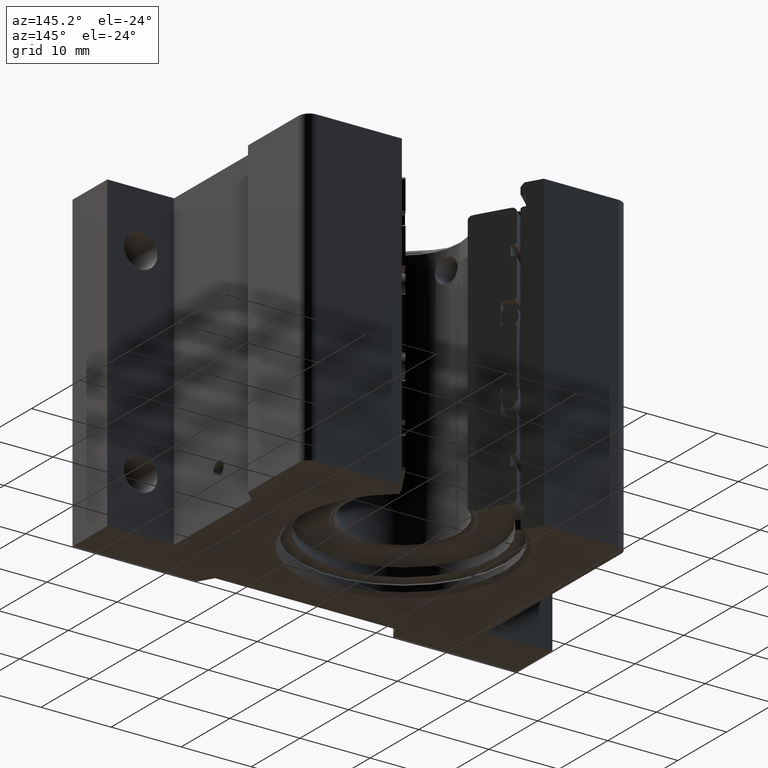
[diagram: clean part render]
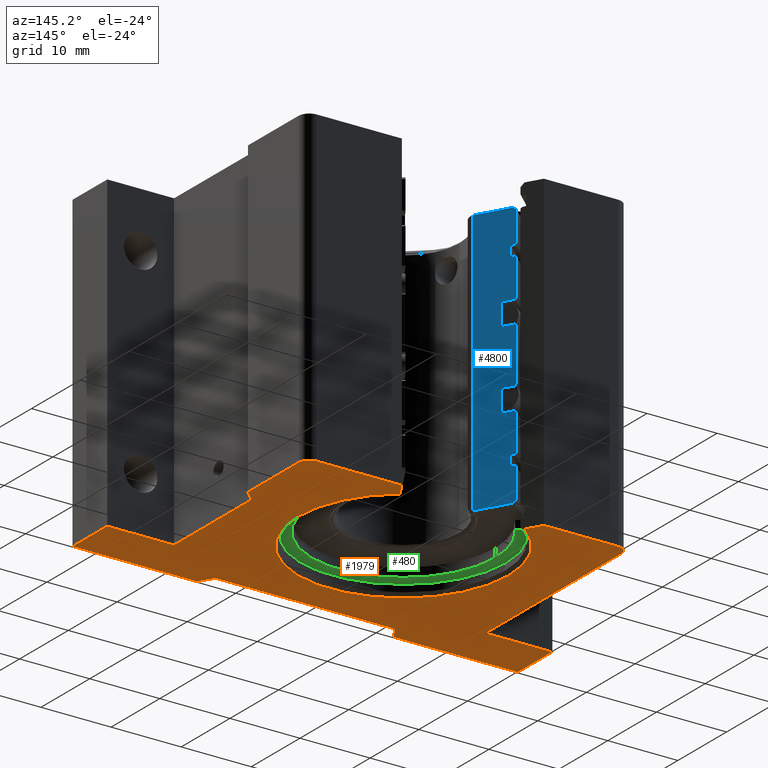
[diagram: same view with three faces highlighted in distinct colors, each labeled with its STEP entity id]
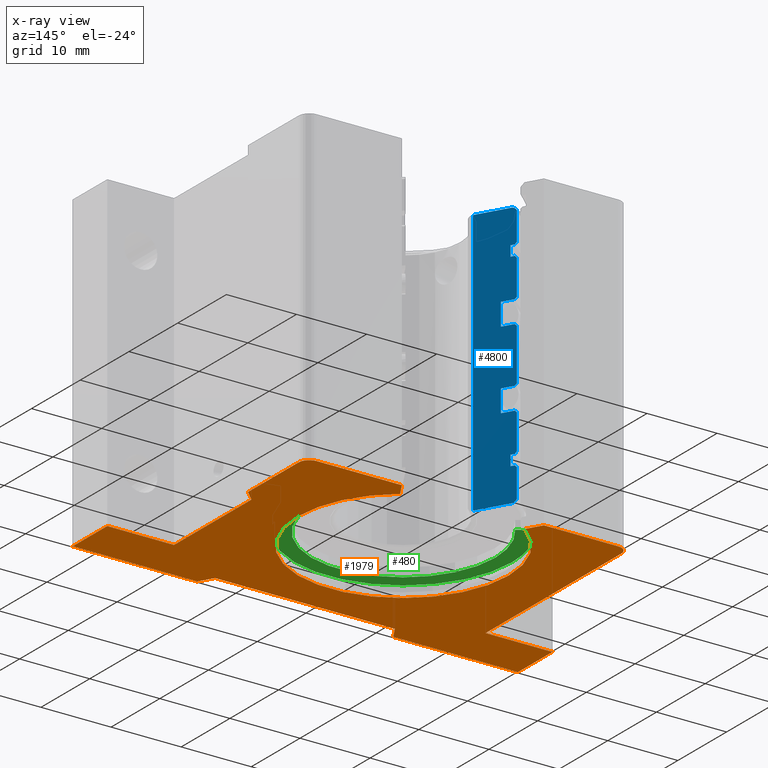
[diagram: x-ray of the same camera — body ghosted, the three highlighted faces saturated]
A machine part, auxiliary view with three faces highlighted in distinct colors.
The next image is the same camera in x-ray (body ghosted, the three faces saturated) — at least one of them is partly hidden behind the body in this view.
Their STEP definitions:

[orange] entity #1979 — the highlighted planar face has unit normal (0, 0, 1).
#162 = ORIENTED_EDGE ( 'NONE', *, *, #2901, .T. ) ;
#272 = DIRECTION ( 'NONE',  ( -0.0000000000000000000, 0.0000000000000000000, 1.000000000000000000 ) ) ;
#324 = DIRECTION ( 'NONE',  ( 1.000000000000000000, 3.642463991552353423E-16, 0.0000000000000000000 ) ) ;
#410 = VECTOR ( 'NONE', #5370, 39.37007874015748143 ) ;
#605 = ORIENTED_EDGE ( 'NONE', *, *, #2780, .T. ) ;
#657 = CIRCLE ( 'NONE', #1450, 0.06000000000000004635 ) ;
#666 = DIRECTION ( 'NONE',  ( 0.4999999999999975575, -0.8660254037844400399, 0.0000000000000000000 ) ) ;
#792 = ORIENTED_EDGE ( 'NONE', *, *, #10227, .T. ) ;
#898 = EDGE_CURVE ( 'NONE', #2655, #9675, #2879, .T. ) ;
#1002 = AXIS2_PLACEMENT_3D ( 'NONE', #9971, #2172, #3860 ) ;
#1027 = CARTESIAN_POINT ( 'NONE',  ( 0.9375000000000000000, 0.5620000000000002771, -0.8749999999999997780 ) ) ;
#1099 = EDGE_CURVE ( 'NONE', #4003, #1108, #5935, .T. ) ;
#1108 = VERTEX_POINT ( 'NONE', #5959 ) ;
#1128 = VECTOR ( 'NONE', #324, 39.37007874015748143 ) ;
#1162 = CARTESIAN_POINT ( 'NONE',  ( 0.3987364078976752269, 0.5620000000000003881, -0.8749999999999997780 ) ) ;
#1197 = LINE ( 'NONE', #5889, #6442 ) ;
#1237 = VECTOR ( 'NONE', #11203, 39.37007874015748143 ) ;
#1315 = ORIENTED_EDGE ( 'NONE', *, *, #9383, .T. ) ;
#1362 = LINE ( 'NONE', #4530, #1885 ) ;
#1399 = EDGE_CURVE ( 'NONE', #2231, #7678, #5780, .T. ) ;
#1403 = ORIENTED_EDGE ( 'NONE', *, *, #6798, .T. ) ;
#1450 = AXIS2_PLACEMENT_3D ( 'NONE', #2883, #2916, #4668 ) ;
#1483 = EDGE_CURVE ( 'NONE', #10449, #2231, #5223, .T. ) ;
#1647 = LINE ( 'NONE', #5455, #1128 ) ;
#1885 = VECTOR ( 'NONE', #2187, 39.37007874015748143 ) ;
#1935 = CARTESIAN_POINT ( 'NONE',  ( -0.8750000000000000000, -0.5939999999999999725, -0.8749999999999997780 ) ) ;
#1946 = ORIENTED_EDGE ( 'NONE', *, *, #3545, .T. ) ;
#1979 = ADVANCED_FACE ( 'NONE', ( #10864 ), #4534, .F. ) ;
#2036 = LINE ( 'NONE', #7472, #3124 ) ;
#2075 = CARTESIAN_POINT ( 'NONE',  ( -0.8149999999999999467, 0.5020000000000004459, -0.8749999999999997780 ) ) ;
#2096 = VERTEX_POINT ( 'NONE', #5395 ) ;
#2113 = CARTESIAN_POINT ( 'NONE',  ( 1.081811805491048871E-16, -0.5939999999999999725, -0.8749999999999997780 ) ) ;
#2172 = DIRECTION ( 'NONE',  ( -0.0000000000000000000, 0.0000000000000000000, 1.000000000000000000 ) ) ;
#2187 = DIRECTION ( 'NONE',  ( 0.0000000000000000000, -1.000000000000000000, 0.0000000000000000000 ) ) ;
#2231 = VERTEX_POINT ( 'NONE', #7383 ) ;
#2244 = VERTEX_POINT ( 'NONE', #7058 ) ;
#2311 = EDGE_CURVE ( 'NONE', #5489, #5881, #5807, .T. ) ;
#2388 = ORIENTED_EDGE ( 'NONE', *, *, #5465, .T. ) ;
#2457 = VERTEX_POINT ( 'NONE', #4590 ) ;
#2617 = CARTESIAN_POINT ( 'NONE',  ( -0.5047649730810367386, -0.7950000000000001510, -0.8749999999999997780 ) ) ;
#2655 = VERTEX_POINT ( 'NONE', #2617 ) ;
#2671 = CARTESIAN_POINT ( 'NONE',  ( 0.9375000000000000000, 0.5020000000000003348, -0.8749999999999997780 ) ) ;
#2751 = CARTESIAN_POINT ( 'NONE',  ( 0.05569916745983082007, -0.03215792932657114689, -0.8749999999999997780 ) ) ;
#2780 = EDGE_CURVE ( 'NONE', #6974, #5754, #5933, .T. ) ;
#2851 = AXIS2_PLACEMENT_3D ( 'NONE', #10887, #10089, #5709 ) ;
#2873 = DIRECTION ( 'NONE',  ( -0.5000000000000055511, -0.8660254037844353769, 0.0000000000000000000 ) ) ;
#2879 = LINE ( 'NONE', #8051, #6367 ) ;
#2883 = CARTESIAN_POINT ( 'NONE',  ( 0.8774999999999999467, 0.5020000000000003348, -0.8749999999999997780 ) ) ;
#2901 = EDGE_CURVE ( 'NONE', #1108, #6974, #10023, .T. ) ;
#2916 = DIRECTION ( 'NONE',  ( 0.0000000000000000000, -0.0000000000000000000, -1.000000000000000000 ) ) ;
#3034 = LINE ( 'NONE', #4678, #10046 ) ;
#3067 = CARTESIAN_POINT ( 'NONE',  ( -0.5509529946162073921, -0.8750000000000000000, -0.8749999999999997780 ) ) ;
#3116 = CARTESIAN_POINT ( 'NONE',  ( 0.3491928415662754470, 0.4761881868495112524, -0.8750004910210985587 ) ) ;
#3124 = VECTOR ( 'NONE', #9093, 39.37007874015748143 ) ;
#3145 = LINE ( 'NONE', #11191, #4741 ) ;
#3323 = ORIENTED_EDGE ( 'NONE', *, *, #2311, .T. ) ;
#3345 = VERTEX_POINT ( 'NONE', #1162 ) ;
#3446 = VERTEX_POINT ( 'NONE', #6437 ) ;
#3457 = ORIENTED_EDGE ( 'NONE', *, *, #6394, .T. ) ;
#3481 = EDGE_CURVE ( 'NONE', #2457, #8111, #4726, .T. ) ;
#3545 = EDGE_CURVE ( 'NONE', #5650, #2655, #2036, .T. ) ;
#3712 = CARTESIAN_POINT ( 'NONE',  ( 0.5904999999999986926, 7.231539348965104059E-17, -0.8749999999999997780 ) ) ;
#3758 = DIRECTION ( 'NONE',  ( 1.000000000000000000, 0.0000000000000000000, 0.0000000000000000000 ) ) ;
#3775 = VECTOR ( 'NONE', #8786, 39.37007874015748143 ) ;
#3780 = VECTOR ( 'NONE', #10895, 39.37007874015748143 ) ;
#3860 = DIRECTION ( 'NONE',  ( 1.000000000000000000, 0.0000000000000000000, 0.0000000000000000000 ) ) ;
#3885 = CIRCLE ( 'NONE', #2851, 0.5904999999999986926 ) ;
#3985 = ORIENTED_EDGE ( 'NONE', *, *, #1483, .T. ) ;
#4003 = VERTEX_POINT ( 'NONE', #1935 ) ;
#4015 = DIRECTION ( 'NONE',  ( 1.000000000000000000, 0.0000000000000000000, 0.0000000000000000000 ) ) ;
#4225 = ORIENTED_EDGE ( 'NONE', *, *, #3481, .T. ) ;
#4230 = VERTEX_POINT ( 'NONE', #3116 ) ;
#4371 = EDGE_CURVE ( 'NONE', #4230, #3345, #5271, .T. ) ;
#4401 = CARTESIAN_POINT ( 'NONE',  ( -2.028911374921485628E-16, 0.5620000000000006102, -0.8749999999999997780 ) ) ;
#4427 = CARTESIAN_POINT ( 'NONE',  ( 0.8750000000000002220, -0.5939999999999997504, -0.8749999999999997780 ) ) ;
#4530 = CARTESIAN_POINT ( 'NONE',  ( 1.250000000000000000, 0.0000000000000000000, -0.8749999999999997780 ) ) ;
#4534 = PLANE ( 'NONE',  #9843 ) ;
#4555 = DIRECTION ( 'NONE',  ( -0.7071067811865432429, -0.7071067811865516806, 0.0000000000000000000 ) ) ;
#4590 = CARTESIAN_POINT ( 'NONE',  ( -0.5904999999999986926, 0.0000000000000000000, -0.8749999999999997780 ) ) ;
#4614 = ORIENTED_EDGE ( 'NONE', *, *, #9039, .T. ) ;
#4668 = DIRECTION ( 'NONE',  ( 1.000000000000000000, 0.0000000000000000000, 0.0000000000000000000 ) ) ;
#4678 = CARTESIAN_POINT ( 'NONE',  ( 0.03432863180645934209, 0.01981964481437106795, -0.8749999999999997780 ) ) ;
#4726 = CIRCLE ( 'NONE', #6715, 0.5904999999999986926 ) ;
#4736 = DIRECTION ( 'NONE',  ( -0.0000000000000000000, 0.0000000000000000000, 1.000000000000000000 ) ) ;
#4741 = VECTOR ( 'NONE', #6020, 39.37007874015748143 ) ;
#4825 = EDGE_CURVE ( 'NONE', #7397, #4003, #1647, .T. ) ;
#4895 = CARTESIAN_POINT ( 'NONE',  ( 0.0000000000000000000, -0.8750000000000000000, -0.8749999999999997780 ) ) ;
#5006 = VECTOR ( 'NONE', #6220, 39.37007874015748854 ) ;
#5122 = CARTESIAN_POINT ( 'NONE',  ( -1.249999999999999778, 0.0000000000000000000, -0.8749999999999997780 ) ) ;
#5162 = DIRECTION ( 'NONE',  ( 0.0000000000000000000, 1.000000000000000000, 0.0000000000000000000 ) ) ;
#5209 = ORIENTED_EDGE ( 'NONE', *, *, #10333, .T. ) ;
#5223 = LINE ( 'NONE', #1027, #410 ) ;
#5271 = LINE ( 'NONE', #2751, #5006 ) ;
#5370 = DIRECTION ( 'NONE',  ( 0.0000000000000000000, -1.000000000000000000, 0.0000000000000000000 ) ) ;
#5395 = CARTESIAN_POINT ( 'NONE',  ( 0.8774999999999999467, 0.5620000000000002771, -0.8749999999999997780 ) ) ;
#5402 = CARTESIAN_POINT ( 'NONE',  ( 0.0000000000000000000, 0.0000000000000000000, -0.8749999999999997780 ) ) ;
#5455 = CARTESIAN_POINT ( 'NONE',  ( 2.163623610982096508E-16, -0.5939999999999996394, -0.8749999999999997780 ) ) ;
#5465 = EDGE_CURVE ( 'NONE', #2244, #5489, #1362, .T. ) ;
#5489 = VERTEX_POINT ( 'NONE', #11107 ) ;
#5490 = CARTESIAN_POINT ( 'NONE',  ( -1.249999999999999778, -0.5940000000000000835, -0.8749999999999997780 ) ) ;
#5501 = ORIENTED_EDGE ( 'NONE', *, *, #4825, .T. ) ;
#5530 = VERTEX_POINT ( 'NONE', #6669 ) ;
#5534 = VECTOR ( 'NONE', #10594, 39.37007874015748143 ) ;
#5622 = EDGE_CURVE ( 'NONE', #5530, #7397, #9045, .T. ) ;
#5650 = VERTEX_POINT ( 'NONE', #6039 ) ;
#5709 = DIRECTION ( 'NONE',  ( 1.000000000000000000, 0.0000000000000000000, 0.0000000000000000000 ) ) ;
#5754 = VERTEX_POINT ( 'NONE', #6866 ) ;
#5780 = LINE ( 'NONE', #10650, #8119 ) ;
#5807 = LINE ( 'NONE', #6209, #5534 ) ;
#5881 = VERTEX_POINT ( 'NONE', #7067 ) ;
#5889 = CARTESIAN_POINT ( 'NONE',  ( -0.05569916745983072986, -0.03215792932657110526, -0.8749999999999997780 ) ) ;
#5933 = LINE ( 'NONE', #4401, #3775 ) ;
#5935 = LINE ( 'NONE', #9470, #1237 ) ;
#5959 = CARTESIAN_POINT ( 'NONE',  ( -0.8750000000000000000, 0.5020000000000004459, -0.8749999999999997780 ) ) ;
#6020 = DIRECTION ( 'NONE',  ( 0.0000000000000000000, -1.000000000000000000, 0.0000000000000000000 ) ) ;
#6039 = CARTESIAN_POINT ( 'NONE',  ( 0.5047649730810368496, -0.7950000000000000400, -0.8749999999999997780 ) ) ;
#6144 = ORIENTED_EDGE ( 'NONE', *, *, #1399, .T. ) ;
#6209 = CARTESIAN_POINT ( 'NONE',  ( 0.0000000000000000000, -0.8750000000000000000, -0.8749999999999997780 ) ) ;
#6220 = DIRECTION ( 'NONE',  ( 0.4999999999999973910, 0.8660254037844400399, 0.0000000000000000000 ) ) ;
#6271 = EDGE_CURVE ( 'NONE', #8599, #2244, #10300, .T. ) ;
#6362 = DIRECTION ( 'NONE',  ( 0.0000000000000000000, -0.0000000000000000000, -1.000000000000000000 ) ) ;
#6367 = VECTOR ( 'NONE', #2873, 39.37007874015748854 ) ;
#6394 = EDGE_CURVE ( 'NONE', #9675, #5530, #9607, .T. ) ;
#6437 = CARTESIAN_POINT ( 'NONE',  ( -0.3491928415662753915, 0.4761881868495112524, -0.8750004910210985587 ) ) ;
#6442 = VECTOR ( 'NONE', #666, 39.37007874015748854 ) ;
#6447 = ORIENTED_EDGE ( 'NONE', *, *, #1099, .T. ) ;
#6669 = CARTESIAN_POINT ( 'NONE',  ( -1.249999999999999778, -0.8750000000000000000, -0.8749999999999997780 ) ) ;
#6715 = AXIS2_PLACEMENT_3D ( 'NONE', #7357, #4736, #4015 ) ;
#6798 = EDGE_CURVE ( 'NONE', #3446, #2457, #10947, .T. ) ;
#6866 = CARTESIAN_POINT ( 'NONE',  ( -0.3987364078976752269, 0.5620000000000002771, -0.8749999999999997780 ) ) ;
#6974 = VERTEX_POINT ( 'NONE', #7671 ) ;
#7058 = CARTESIAN_POINT ( 'NONE',  ( 1.250000000000000000, -0.5939999999999997504, -0.8749999999999997780 ) ) ;
#7067 = CARTESIAN_POINT ( 'NONE',  ( 0.5509529946162073921, -0.8750000000000000000, -0.8749999999999997780 ) ) ;
#7298 = VECTOR ( 'NONE', #5162, 39.37007874015748143 ) ;
#7328 = ORIENTED_EDGE ( 'NONE', *, *, #6271, .T. ) ;
#7357 = CARTESIAN_POINT ( 'NONE',  ( 0.0000000000000000000, 0.0000000000000000000, -0.8749999999999997780 ) ) ;
#7383 = CARTESIAN_POINT ( 'NONE',  ( 0.9375000000000000000, 0.09299999999999992994, -0.8749999999999997780 ) ) ;
#7397 = VERTEX_POINT ( 'NONE', #5490 ) ;
#7409 = EDGE_CURVE ( 'NONE', #2096, #10449, #657, .T. ) ;
#7472 = CARTESIAN_POINT ( 'NONE',  ( 1.075658608850429279E-16, -0.7950000000000000400, -0.8749999999999997780 ) ) ;
#7671 = CARTESIAN_POINT ( 'NONE',  ( -0.8149999999999999467, 0.5620000000000003881, -0.8749999999999997780 ) ) ;
#7678 = VERTEX_POINT ( 'NONE', #10207 ) ;
#7694 = ORIENTED_EDGE ( 'NONE', *, *, #5622, .T. ) ;
#7803 = ORIENTED_EDGE ( 'NONE', *, *, #9730, .T. ) ;
#7990 = VECTOR ( 'NONE', #8177, 39.37007874015748143 ) ;
#8051 = CARTESIAN_POINT ( 'NONE',  ( -0.03432863180645777390, 0.01981964481437023876, -0.8749999999999997780 ) ) ;
#8111 = VERTEX_POINT ( 'NONE', #3712 ) ;
#8119 = VECTOR ( 'NONE', #4555, 39.37007874015748854 ) ;
#8177 = DIRECTION ( 'NONE',  ( 1.000000000000000000, 1.821231995776176712E-16, 0.0000000000000000000 ) ) ;
#8199 = AXIS2_PLACEMENT_3D ( 'NONE', #2075, #6362, #3758 ) ;
#8263 = ORIENTED_EDGE ( 'NONE', *, *, #7409, .T. ) ;
#8464 = DIRECTION ( 'NONE',  ( -1.000000000000000000, 0.0000000000000000000, -0.0000000000000000000 ) ) ;
#8493 = EDGE_LOOP ( 'NONE', ( #11169, #7803, #8263, #3985, #6144, #1315, #7328, #2388, #3323, #4614, #1946, #8794, #3457, #7694, #5501, #6447, #162, #605, #5209, #1403, #4225, #792 ) ) ;
#8599 = VERTEX_POINT ( 'NONE', #4427 ) ;
#8786 = DIRECTION ( 'NONE',  ( 1.000000000000000000, 3.610162588828262597E-16, 0.0000000000000000000 ) ) ;
#8794 = ORIENTED_EDGE ( 'NONE', *, *, #898, .T. ) ;
#8836 = DIRECTION ( 'NONE',  ( 1.000000000000000000, 0.0000000000000000000, 0.0000000000000000000 ) ) ;
#9039 = EDGE_CURVE ( 'NONE', #5881, #5650, #3034, .T. ) ;
#9045 = LINE ( 'NONE', #5122, #7298 ) ;
#9093 = DIRECTION ( 'NONE',  ( -1.000000000000000000, -1.353029696667206715E-16, 0.0000000000000000000 ) ) ;
#9198 = VECTOR ( 'NONE', #8464, 39.37007874015748143 ) ;
#9383 = EDGE_CURVE ( 'NONE', #7678, #8599, #3145, .T. ) ;
#9470 = CARTESIAN_POINT ( 'NONE',  ( -0.8750000000000000000, 0.0000000000000000000, -0.8749999999999997780 ) ) ;
#9605 = LINE ( 'NONE', #11009, #3780 ) ;
#9607 = LINE ( 'NONE', #4895, #9198 ) ;
#9675 = VERTEX_POINT ( 'NONE', #3067 ) ;
#9730 = EDGE_CURVE ( 'NONE', #3345, #2096, #9605, .T. ) ;
#9843 = AXIS2_PLACEMENT_3D ( 'NONE', #5402, #272, #8836 ) ;
#9971 = CARTESIAN_POINT ( 'NONE',  ( 0.0000000000000000000, 0.0000000000000000000, -0.8749999999999997780 ) ) ;
#10023 = CIRCLE ( 'NONE', #8199, 0.06000000000000004635 ) ;
#10046 = VECTOR ( 'NONE', #10765, 39.37007874015748143 ) ;
#10089 = DIRECTION ( 'NONE',  ( -0.0000000000000000000, 0.0000000000000000000, 1.000000000000000000 ) ) ;
#10207 = CARTESIAN_POINT ( 'NONE',  ( 0.8750000000000003331, 0.03049999999999934708, -0.8749999999999997780 ) ) ;
#10227 = EDGE_CURVE ( 'NONE', #8111, #4230, #3885, .T. ) ;
#10300 = LINE ( 'NONE', #2113, #7990 ) ;
#10333 = EDGE_CURVE ( 'NONE', #5754, #3446, #1197, .T. ) ;
#10449 = VERTEX_POINT ( 'NONE', #2671 ) ;
#10594 = DIRECTION ( 'NONE',  ( -1.000000000000000000, 0.0000000000000000000, -0.0000000000000000000 ) ) ;
#10650 = CARTESIAN_POINT ( 'NONE',  ( 0.9375000000000000000, 0.09299999999999992994, -0.8749999999999997780 ) ) ;
#10765 = DIRECTION ( 'NONE',  ( -0.5000000000000041078, 0.8660254037844362651, -0.0000000000000000000 ) ) ;
#10864 = FACE_OUTER_BOUND ( 'NONE', #8493, .T. ) ;
#10887 = CARTESIAN_POINT ( 'NONE',  ( 0.0000000000000000000, 0.0000000000000000000, -0.8749999999999997780 ) ) ;
#10895 = DIRECTION ( 'NONE',  ( 1.000000000000000000, -3.610162588828260132E-16, 0.0000000000000000000 ) ) ;
#10947 = CIRCLE ( 'NONE', #1002, 0.5904999999999986926 ) ;
#11009 = CARTESIAN_POINT ( 'NONE',  ( 2.028911374921484148E-16, 0.5620000000000006102, -0.8749999999999997780 ) ) ;
#11107 = CARTESIAN_POINT ( 'NONE',  ( 1.250000000000000000, -0.8750000000000000000, -0.8749999999999997780 ) ) ;
#11169 = ORIENTED_EDGE ( 'NONE', *, *, #4371, .T. ) ;
#11191 = CARTESIAN_POINT ( 'NONE',  ( 0.8750000000000002220, 0.0000000000000000000, -0.8749999999999997780 ) ) ;
#11203 = DIRECTION ( 'NONE',  ( 0.0000000000000000000, 1.000000000000000000, -0.0000000000000000000 ) ) ;

[blue] entity #4800 — the highlighted planar face has unit normal (-0.866, -0.5, 0).
#2 = CARTESIAN_POINT ( 'NONE',  ( -0.3125650805395794318, 0.4672125705204068780, 0.7462499999999998579 ) ) ;
#24 = B_SPLINE_CURVE_WITH_KNOTS ( 'NONE', 3,
 ( #8502, #4202, #9449, #10249 ),
 .UNSPECIFIED., .F., .F.,
 ( 4, 4 ),
 ( 2.831635418398360090E-07, 0.0003778737183458005734 ),
 .UNSPECIFIED. ) ;
#36 = CARTESIAN_POINT ( 'NONE',  ( -0.3073034003428582461, 0.4580990730865067695, 0.1559999999999999443 ) ) ;
#116 = VERTEX_POINT ( 'NONE', #6252 ) ;
#196 = VECTOR ( 'NONE', #963, 39.37007874015748143 ) ;
#206 = EDGE_CURVE ( 'NONE', #6145, #7871, #392, .T. ) ;
#235 = ORIENTED_EDGE ( 'NONE', *, *, #7972, .F. ) ;
#245 = CARTESIAN_POINT ( 'NONE',  ( -0.2003461468640649890, 0.2728436758232128945, -0.7362499999999998490 ) ) ;
#247 = VERTEX_POINT ( 'NONE', #7441 ) ;
#250 = CARTESIAN_POINT ( 'NONE',  ( -0.3125650805395794318, 0.4672125705204068780, -0.5680000000000005045 ) ) ;
#282 = PLANE ( 'NONE',  #4564 ) ;
#321 = ORIENTED_EDGE ( 'NONE', *, *, #4342, .F. ) ;
#366 = CARTESIAN_POINT ( 'NONE',  ( -0.2718990327464868573, 0.3967769095997458750, 3.185039370078740273 ) ) ;
#392 = B_SPLINE_CURVE_WITH_KNOTS ( 'NONE', 3,
 ( #6493, #9146, #5645, #10025 ),
 .UNSPECIFIED., .F., .F.,
 ( 4, 4 ),
 ( 0.0001674968324682746224, 0.0005450873872722363954 ),
 .UNSPECIFIED. ) ;
#396 = DIRECTION ( 'NONE',  ( -0.0000000000000000000, 0.0000000000000000000, -1.000000000000000000 ) ) ;
#412 = CARTESIAN_POINT ( 'NONE',  ( -0.3125650805395794318, 0.4672125705204068780, 0.7462499999999998579 ) ) ;
#444 = CARTESIAN_POINT ( 'NONE',  ( -0.3163876716778765141, 0.4738334925885001048, -0.2810000000000001386 ) ) ;
#467 = VECTOR ( 'NONE', #8142, 39.37007874015748143 ) ;
#531 = ORIENTED_EDGE ( 'NONE', *, *, #9419, .F. ) ;
#648 = VERTEX_POINT ( 'NONE', #3664 ) ;
#658 = ORIENTED_EDGE ( 'NONE', *, *, #10290, .F. ) ;
#679 = VERTEX_POINT ( 'NONE', #9081 ) ;
#844 = CARTESIAN_POINT ( 'NONE',  ( -0.3045799619236991274, 0.4533819393732381742, 0.7444445345742485287 ) ) ;
#850 = LINE ( 'NONE', #412, #5696 ) ;
#963 = DIRECTION ( 'NONE',  ( 0.0000000000000000000, 0.0000000000000000000, -1.000000000000000000 ) ) ;
#967 = VECTOR ( 'NONE', #11105, 39.37007874015748143 ) ;
#996 = CARTESIAN_POINT ( 'NONE',  ( -0.3094996444647200584, 0.4619030794913956406, -0.7378666250704558616 ) ) ;
#998 = CARTESIAN_POINT ( 'NONE',  ( -0.2003461468640649890, 0.2728436758232128945, -0.7362499999999998490 ) ) ;
#1004 = LINE ( 'NONE', #3793, #7062 ) ;
#1057 = DIRECTION ( 'NONE',  ( 0.0000000000000000000, 0.0000000000000000000, -1.000000000000000000 ) ) ;
#1071 = DIRECTION ( 'NONE',  ( -0.4999999999999980016, 0.8660254037844397068, -1.922962686383566528E-16 ) ) ;
#1152 = CARTESIAN_POINT ( 'NONE',  ( -0.3114367386855312891, 0.4652582251008885450, -0.7331307646974405401 ) ) ;
#1157 = LINE ( 'NONE', #8317, #6262 ) ;
#1244 = ORIENTED_EDGE ( 'NONE', *, *, #4911, .F. ) ;
#1304 = EDGE_CURVE ( 'NONE', #2670, #9211, #9872, .T. ) ;
#1340 = DIRECTION ( 'NONE',  ( -0.4999999999999980016, 0.8660254037844397068, -1.922962686383566528E-16 ) ) ;
#1353 = CARTESIAN_POINT ( 'NONE',  ( -0.3125650805395794318, 0.4672125705204068780, -0.7276490131151623908 ) ) ;
#1389 = EDGE_CURVE ( 'NONE', #8962, #1652, #8711, .T. ) ;
#1505 = CARTESIAN_POINT ( 'NONE',  ( -0.2403939424957921567, 0.3422084925884996687, 0.1559999999999999998 ) ) ;
#1626 = VECTOR ( 'NONE', #396, 39.37007874015748143 ) ;
#1652 = VERTEX_POINT ( 'NONE', #3207 ) ;
#1660 = CARTESIAN_POINT ( 'NONE',  ( -0.2403939424957921567, 0.3422084925884996687, -0.1560000000000001386 ) ) ;
#1754 = LINE ( 'NONE', #6188, #4050 ) ;
#1773 = LINE ( 'NONE', #10509, #2207 ) ;
#1777 = CARTESIAN_POINT ( 'NONE',  ( -0.3073034003428583016, 0.4580990730865068805, -0.1560000000000001663 ) ) ;
#1848 = CARTESIAN_POINT ( 'NONE',  ( -0.2003461468640651555, 0.2728436758232127834, -0.7397675868622871631 ) ) ;
#1868 = EDGE_CURVE ( 'NONE', #7995, #10289, #850, .T. ) ;
#1886 = CARTESIAN_POINT ( 'NONE',  ( -0.3125650805395794318, 0.4672125705204068780, -0.7276490131151623908 ) ) ;
#1898 = CARTESIAN_POINT ( 'NONE',  ( -0.3125650805395794318, 0.4672125705204068780, -0.2915000000000002034 ) ) ;
#1953 = EDGE_CURVE ( 'NONE', #10386, #5471, #1773, .T. ) ;
#1962 = CARTESIAN_POINT ( 'NONE',  ( -0.3045566806634480428, 0.4533416150476187734, -0.7444764988156681307 ) ) ;
#1976 = VERTEX_POINT ( 'NONE', #8873 ) ;
#2052 = ORIENTED_EDGE ( 'NONE', *, *, #5295, .F. ) ;
#2070 = LINE ( 'NONE', #1660, #6650 ) ;
#2207 = VECTOR ( 'NONE', #8778, 39.37007874015748143 ) ;
#2213 = EDGE_CURVE ( 'NONE', #4027, #4951, #10724, .T. ) ;
#2503 = CARTESIAN_POINT ( 'NONE',  ( -0.3108112235432878290, 0.4641748010936194158, -0.4930000729656898728 ) ) ;
#2505 = DIRECTION ( 'NONE',  ( -0.0000000000000000000, -0.0000000000000000000, 1.000000000000000000 ) ) ;
#2530 = CARTESIAN_POINT ( 'NONE',  ( -0.3125650805395794318, 0.4672125705204069335, 0.7276490131151778229 ) ) ;
#2605 = LINE ( 'NONE', #3976, #10482 ) ;
#2670 = VERTEX_POINT ( 'NONE', #5245 ) ;
#2765 = CARTESIAN_POINT ( 'NONE',  ( -0.3073034003428580241, 0.4580990730865064364, -0.5575000000000001066 ) ) ;
#2820 = CARTESIAN_POINT ( 'NONE',  ( -0.3125650805395794318, 0.4672125705204068780, -0.5680000000000005045 ) ) ;
#2933 = EDGE_CURVE ( 'NONE', #6145, #9526, #1004, .T. ) ;
#3015 = DIRECTION ( 'NONE',  ( 0.0000000000000000000, 0.0000000000000000000, -1.000000000000000000 ) ) ;
#3018 = ORIENTED_EDGE ( 'NONE', *, *, #2213, .F. ) ;
#3048 = LINE ( 'NONE', #5241, #9539 ) ;
#3075 = CARTESIAN_POINT ( 'NONE',  ( -0.3163876716778765141, 0.4738334925885001048, 0.5574999999999998845 ) ) ;
#3106 = CARTESIAN_POINT ( 'NONE',  ( -0.3073034003428580241, 0.4580990730865064364, -0.5575000000000001066 ) ) ;
#3112 = CARTESIAN_POINT ( 'NONE',  ( -0.3125650805395794318, 0.4672125705204068780, 0.5679999999999999494 ) ) ;
#3175 = EDGE_CURVE ( 'NONE', #679, #9504, #8131, .T. ) ;
#3206 = ORIENTED_EDGE ( 'NONE', *, *, #1304, .T. ) ;
#3207 = CARTESIAN_POINT ( 'NONE',  ( -0.2016939410633285246, 0.2751781238544839248, -0.7462499999999999689 ) ) ;
#3227 = ORIENTED_EDGE ( 'NONE', *, *, #7078, .F. ) ;
#3292 = EDGE_CURVE ( 'NONE', #5471, #8770, #1754, .T. ) ;
#3296 = CARTESIAN_POINT ( 'NONE',  ( -0.2003461468640032606, 0.2728436758231059800, 0.7397676375970000384 ) ) ;
#3320 = EDGE_CURVE ( 'NONE', #7995, #4948, #10479, .T. ) ;
#3326 = DIRECTION ( 'NONE',  ( 0.0000000000000000000, 0.0000000000000000000, -1.000000000000000000 ) ) ;
#3400 = ORIENTED_EDGE ( 'NONE', *, *, #6576, .T. ) ;
#3415 = EDGE_CURVE ( 'NONE', #6593, #5121, #9671, .T. ) ;
#3424 = CARTESIAN_POINT ( 'NONE',  ( -0.2986582114549756195, 0.4431251666916640186, 0.7462499999999998579 ) ) ;
#3473 = CARTESIAN_POINT ( 'NONE',  ( -0.3125650805395794318, 0.4672125705204068780, 0.7462499999999998579 ) ) ;
#3508 = VERTEX_POINT ( 'NONE', #7324 ) ;
#3664 = CARTESIAN_POINT ( 'NONE',  ( -0.2986582114549756195, 0.4431251666916640186, -0.7462500000000000799 ) ) ;
#3695 = CARTESIAN_POINT ( 'NONE',  ( -0.2986582114549756195, 0.4431251666916640186, -0.7462500000000000799 ) ) ;
#3699 = CARTESIAN_POINT ( 'NONE',  ( -0.2016939410633285246, 0.2751781238544839248, -0.7462499999999999689 ) ) ;
#3793 = CARTESIAN_POINT ( 'NONE',  ( -0.3125650805395794318, 0.4672125705204068780, 0.7462499999999998579 ) ) ;
#3855 = CARTESIAN_POINT ( 'NONE',  ( -0.3090573308380664130, 0.4611369698171514653, -0.2844999256407583221 ) ) ;
#3891 = ORIENTED_EDGE ( 'NONE', *, *, #4174, .F. ) ;
#3976 = CARTESIAN_POINT ( 'NONE',  ( -0.4218502289038343345, 0.6565000000000001945, 0.7462499999999998579 ) ) ;
#4027 = VERTEX_POINT ( 'NONE', #7146 ) ;
#4032 = VECTOR ( 'NONE', #8739, 39.37007874015748854 ) ;
#4050 = VECTOR ( 'NONE', #5309, 39.37007874015748143 ) ;
#4161 = VERTEX_POINT ( 'NONE', #5039 ) ;
#4174 = EDGE_CURVE ( 'NONE', #4951, #5121, #8893, .T. ) ;
#4202 = CARTESIAN_POINT ( 'NONE',  ( -0.3090573308380663020, 0.4611369698171514098, 0.2844999256407582111 ) ) ;
#4221 = LINE ( 'NONE', #6114, #196 ) ;
#4251 = CARTESIAN_POINT ( 'NONE',  ( -0.3125650805395794318, 0.4672125705204068780, 0.7462499999999998579 ) ) ;
#4270 = ORIENTED_EDGE ( 'NONE', *, *, #2933, .F. ) ;
#4311 = EDGE_CURVE ( 'NONE', #9554, #8367, #6564, .T. ) ;
#4342 = EDGE_CURVE ( 'NONE', #10909, #4027, #2070, .T. ) ;
#4384 = CARTESIAN_POINT ( 'NONE',  ( -0.3016068928560460827, 0.4482324326936512060, -0.7462500000000009681 ) ) ;
#4443 = ORIENTED_EDGE ( 'NONE', *, *, #3320, .T. ) ;
#4455 = CARTESIAN_POINT ( 'NONE',  ( -0.2986582114549756195, 0.4431251666916640186, 0.7462499999999998579 ) ) ;
#4490 = ORIENTED_EDGE ( 'NONE', *, *, #5539, .F. ) ;
#4496 = CARTESIAN_POINT ( 'NONE',  ( -0.3108112235432876624, 0.4641748010936194158, 0.4930000729656894287 ) ) ;
#4564 = AXIS2_PLACEMENT_3D ( 'NONE', #9835, #8101, #1071 ) ;
#4683 = LINE ( 'NONE', #8593, #7543 ) ;
#4689 = ORIENTED_EDGE ( 'NONE', *, *, #3415, .T. ) ;
#4717 = CARTESIAN_POINT ( 'NONE',  ( -0.3073034003428583016, 0.4580990730865068805, -0.2810000000000000830 ) ) ;
#4760 = LINE ( 'NONE', #3075, #467 ) ;
#4800 = ADVANCED_FACE ( 'NONE', ( #8961 ), #282, .F. ) ;
#4911 = EDGE_CURVE ( 'NONE', #2670, #247, #4760, .T. ) ;
#4948 = VERTEX_POINT ( 'NONE', #3106 ) ;
#4951 = VERTEX_POINT ( 'NONE', #8184 ) ;
#5014 = CARTESIAN_POINT ( 'NONE',  ( -0.2003461468640650445, 0.2728436758232128945, 0.7362499999999998490 ) ) ;
#5039 = CARTESIAN_POINT ( 'NONE',  ( -0.3125650805395794318, 0.4672125705204068780, 0.2914999999999999813 ) ) ;
#5042 = CARTESIAN_POINT ( 'NONE',  ( -0.3073034003428584127, 0.4580990730865070470, -0.5000000000000001110 ) ) ;
#5089 = CARTESIAN_POINT ( 'NONE',  ( -0.2016939410633285246, 0.2751781238544839248, 0.7462499999999999689 ) ) ;
#5090 = LINE ( 'NONE', #1505, #5914 ) ;
#5116 = CARTESIAN_POINT ( 'NONE',  ( -0.3125650805395794318, 0.4672125705204068780, -0.1455000000000000460 ) ) ;
#5121 = VERTEX_POINT ( 'NONE', #8603 ) ;
#5135 = EDGE_CURVE ( 'NONE', #9565, #4161, #24, .T. ) ;
#5151 = CARTESIAN_POINT ( 'NONE',  ( -0.3016044470908610942, 0.4482281965040877947, 0.7462500000000006350 ) ) ;
#5199 = CARTESIAN_POINT ( 'NONE',  ( -0.3125650805395794318, 0.4672125705204068780, 0.1454999999999997962 ) ) ;
#5201 = ORIENTED_EDGE ( 'NONE', *, *, #1389, .T. ) ;
#5241 = CARTESIAN_POINT ( 'NONE',  ( -0.2616115648885108391, 0.3789584925884997291, 0.4999999999999999445 ) ) ;
#5245 = CARTESIAN_POINT ( 'NONE',  ( -0.3073034003428582461, 0.4580990730865067695, 0.5574999999999998845 ) ) ;
#5292 = CARTESIAN_POINT ( 'NONE',  ( -0.3073034003428582461, 0.4580990730865067695, 0.2809999999999999165 ) ) ;
#5295 = EDGE_CURVE ( 'NONE', #1976, #4161, #10711, .T. ) ;
#5309 = DIRECTION ( 'NONE',  ( -0.0000000000000000000, 0.0000000000000000000, -1.000000000000000000 ) ) ;
#5366 = CARTESIAN_POINT ( 'NONE',  ( -0.3073034003428580241, 0.4580990730865064364, 0.4999999999999999445 ) ) ;
#5471 = VERTEX_POINT ( 'NONE', #6595 ) ;
#5539 = EDGE_CURVE ( 'NONE', #9565, #679, #7424, .T. ) ;
#5543 = VECTOR ( 'NONE', #6780, 39.37007874015748143 ) ;
#5548 = EDGE_CURVE ( 'NONE', #9504, #7871, #5090, .T. ) ;
#5645 = CARTESIAN_POINT ( 'NONE',  ( -0.3090573308380663020, 0.4611369698171514653, 0.1525000743592417607 ) ) ;
#5696 = VECTOR ( 'NONE', #3015, 39.37007874015748143 ) ;
#5737 = DIRECTION ( 'NONE',  ( -0.4999999999999980016, 0.8660254037844397068, -1.922962686383566528E-16 ) ) ;
#5846 = EDGE_CURVE ( 'NONE', #247, #8209, #4221, .T. ) ;
#5860 = DIRECTION ( 'NONE',  ( 0.4999999999999980016, -0.8660254037844397068, 1.922962686383566528E-16 ) ) ;
#5914 = VECTOR ( 'NONE', #10161, 39.37007874015748143 ) ;
#6026 = CARTESIAN_POINT ( 'NONE',  ( -0.3114376474914295478, 0.4652597991988791093, 0.7331263495034441302 ) ) ;
#6114 = CARTESIAN_POINT ( 'NONE',  ( -0.2964653814057937598, 0.4393270736341173266, -3.185039370078740273 ) ) ;
#6143 = CARTESIAN_POINT ( 'NONE',  ( -0.3073034003428584127, 0.4580990730865070470, -0.5000000000000001110 ) ) ;
#6145 = VERTEX_POINT ( 'NONE', #5199 ) ;
#6188 = CARTESIAN_POINT ( 'NONE',  ( -0.2964653814057937598, 0.4393270736341173266, 3.185039370078740273 ) ) ;
#6212 = CARTESIAN_POINT ( 'NONE',  ( -0.2718990327464867462, 0.3967769095997458750, 0.1560000000000000830 ) ) ;
#6237 = DIRECTION ( 'NONE',  ( -0.4999999999999980016, 0.8660254037844397068, -1.922962686383566528E-16 ) ) ;
#6252 = CARTESIAN_POINT ( 'NONE',  ( -0.3125650805395794318, 0.4672125705204068780, -0.4895000000000000462 ) ) ;
#6262 = VECTOR ( 'NONE', #5737, 39.37007874015748143 ) ;
#6305 = CARTESIAN_POINT ( 'NONE',  ( -0.3108112235432878845, 0.4641748010936194713, -0.2879999270343102102 ) ) ;
#6351 = VECTOR ( 'NONE', #1057, 39.37007874015748143 ) ;
#6493 = CARTESIAN_POINT ( 'NONE',  ( -0.3125650805395794318, 0.4672125705204068780, 0.1454999999999997962 ) ) ;
#6516 = DIRECTION ( 'NONE',  ( -0.4999999999999979461, 0.8660254037844397068, -1.922962686383566775E-16 ) ) ;
#6545 = B_SPLINE_CURVE_WITH_KNOTS ( 'NONE', 3,
 ( #9715, #4496, #10487, #5366 ),
 .UNSPECIFIED., .F., .F.,
 ( 4, 4 ),
 ( 0.0001674968324682743243, 0.0005450873872722515742 ),
 .UNSPECIFIED. ) ;
#6564 = B_SPLINE_CURVE_WITH_KNOTS ( 'NONE', 3,
 ( #3424, #5151, #844, #9505, #6026, #2530 ),
 .UNSPECIFIED., .F., .F.,
 ( 4, 2, 4 ),
 ( 0.001193162721869143236, 0.001641503762212147017, 0.002089844802555152099 ),
 .UNSPECIFIED. ) ;
#6565 = ORIENTED_EDGE ( 'NONE', *, *, #10389, .T. ) ;
#6576 = EDGE_CURVE ( 'NONE', #1652, #648, #9878, .T. ) ;
#6587 = VECTOR ( 'NONE', #1340, 39.37007874015748143 ) ;
#6593 = VERTEX_POINT ( 'NONE', #1898 ) ;
#6595 = CARTESIAN_POINT ( 'NONE',  ( -0.2964653814057937598, 0.4393270736341173266, -0.5000000000000002220 ) ) ;
#6611 = ORIENTED_EDGE ( 'NONE', *, *, #1953, .F. ) ;
#6650 = VECTOR ( 'NONE', #7711, 39.37007874015748143 ) ;
#6686 = CARTESIAN_POINT ( 'NONE',  ( -0.3125650805395794318, 0.4672125705204068780, 0.5679999999999999494 ) ) ;
#6780 = DIRECTION ( 'NONE',  ( 0.0000000000000000000, 0.0000000000000000000, -1.000000000000000000 ) ) ;
#6889 = LINE ( 'NONE', #2, #5543 ) ;
#6990 = VECTOR ( 'NONE', #5860, 39.37007874015748143 ) ;
#7039 = VECTOR ( 'NONE', #3326, 39.37007874015748143 ) ;
#7054 = LINE ( 'NONE', #4251, #7039 ) ;
#7062 = VECTOR ( 'NONE', #9864, 39.37007874015748143 ) ;
#7064 = CARTESIAN_POINT ( 'NONE',  ( -0.3108112235432877735, 0.4641748010936193602, -0.5644999270343104003 ) ) ;
#7078 = EDGE_CURVE ( 'NONE', #10289, #648, #9438, .T. ) ;
#7146 = CARTESIAN_POINT ( 'NONE',  ( -0.2718990327464868573, 0.3967769095997458750, -0.1560000000000003051 ) ) ;
#7324 = CARTESIAN_POINT ( 'NONE',  ( -0.3073034003428580241, 0.4580990730865064364, 0.4999999999999999445 ) ) ;
#7413 = B_SPLINE_CURVE_WITH_KNOTS ( 'NONE', 3,
 ( #5042, #9431, #2503, #8557 ),
 .UNSPECIFIED., .F., .F.,
 ( 4, 4 ),
 ( 2.831635418434952442E-07, 0.0003778737183457969956 ),
 .UNSPECIFIED. ) ;
#7415 = EDGE_LOOP ( 'NONE', ( #531, #7929, #11218, #9992, #658, #5201, #3400, #3227, #9243, #4443, #11138, #7792, #6611, #7789, #9788, #4689, #3891, #3018, #321, #6565, #4270, #8150, #10818, #9453, #4490, #8685, #2052, #11129, #235, #9791, #1244, #3206 ) ) ;
#7424 = LINE ( 'NONE', #11071, #6990 ) ;
#7441 = CARTESIAN_POINT ( 'NONE',  ( -0.2964653814057937598, 0.4393270736341173266, 0.5574999999999996625 ) ) ;
#7543 = VECTOR ( 'NONE', #2505, 39.37007874015748143 ) ;
#7711 = DIRECTION ( 'NONE',  ( 0.4999999999999980016, -0.8660254037844397068, 1.922962686383566528E-16 ) ) ;
#7737 = CARTESIAN_POINT ( 'NONE',  ( -0.3073034003428583016, 0.4580990730865068805, -0.1560000000000001663 ) ) ;
#7789 = ORIENTED_EDGE ( 'NONE', *, *, #8784, .T. ) ;
#7792 = ORIENTED_EDGE ( 'NONE', *, *, #3292, .F. ) ;
#7860 = CARTESIAN_POINT ( 'NONE',  ( -0.2003461468640650445, 0.2728436758232128945, 0.7362499999999998490 ) ) ;
#7862 = CARTESIAN_POINT ( 'NONE',  ( -0.3108112235432878290, 0.4641748010936194158, -0.1490000729656899559 ) ) ;
#7871 = VERTEX_POINT ( 'NONE', #36 ) ;
#7898 = CARTESIAN_POINT ( 'NONE',  ( -0.2008106257957521790, 0.2736481769319400459, -0.7432082341166716954 ) ) ;
#7929 = ORIENTED_EDGE ( 'NONE', *, *, #4311, .F. ) ;
#7972 = EDGE_CURVE ( 'NONE', #8209, #3508, #3048, .T. ) ;
#7995 = VERTEX_POINT ( 'NONE', #2820 ) ;
#8101 = DIRECTION ( 'NONE',  ( -0.8660254037844398178, -0.4999999999999980571, 1.110223024625152103E-16 ) ) ;
#8131 = LINE ( 'NONE', #10160, #967 ) ;
#8132 = EDGE_CURVE ( 'NONE', #9928, #9554, #2605, .T. ) ;
#8142 = DIRECTION ( 'NONE',  ( 0.4999999999999980016, -0.8660254037844397068, 1.922962686383566528E-16 ) ) ;
#8150 = ORIENTED_EDGE ( 'NONE', *, *, #206, .T. ) ;
#8184 = CARTESIAN_POINT ( 'NONE',  ( -0.2718990327464868018, 0.3967769095997458750, -0.2810000000000001941 ) ) ;
#8209 = VERTEX_POINT ( 'NONE', #9087 ) ;
#8317 = CARTESIAN_POINT ( 'NONE',  ( -0.3163876716778765141, 0.4738334925885001048, -0.5575000000000001066 ) ) ;
#8367 = VERTEX_POINT ( 'NONE', #9359 ) ;
#8374 = EDGE_CURVE ( 'NONE', #9928, #8940, #8627, .T. ) ;
#8479 = CARTESIAN_POINT ( 'NONE',  ( -0.3073034003428582461, 0.4580990730865067695, 0.5574999999999998845 ) ) ;
#8502 = CARTESIAN_POINT ( 'NONE',  ( -0.3073034003428582461, 0.4580990730865067695, 0.2809999999999999165 ) ) ;
#8513 = CARTESIAN_POINT ( 'NONE',  ( -0.3108112235432876624, 0.4641748010936194158, 0.5644999270343100672 ) ) ;
#8557 = CARTESIAN_POINT ( 'NONE',  ( -0.3125650805395794318, 0.4672125705204068780, -0.4895000000000000462 ) ) ;
#8593 = CARTESIAN_POINT ( 'NONE',  ( -0.2003461468640650445, 0.2728436758232128945, 0.7562499999999998668 ) ) ;
#8603 = CARTESIAN_POINT ( 'NONE',  ( -0.3073034003428583016, 0.4580990730865068805, -0.2810000000000000830 ) ) ;
#8623 = CARTESIAN_POINT ( 'NONE',  ( -0.2964653814057937598, 0.4393270736341173266, -0.5574999999999997735 ) ) ;
#8625 = CARTESIAN_POINT ( 'NONE',  ( -0.3090573308380663575, 0.4611369698171514653, -0.1525000743592418717 ) ) ;
#8627 = B_SPLINE_CURVE_WITH_KNOTS ( 'NONE', 3,
 ( #11171, #9318, #3296, #5014 ),
 .UNSPECIFIED., .F., .F.,
 ( 4, 4 ),
 ( 2.280509175021220560E-07, 0.0002644778146374871831 ),
 .UNSPECIFIED. ) ;
#8685 = ORIENTED_EDGE ( 'NONE', *, *, #5135, .T. ) ;
#8711 = B_SPLINE_CURVE_WITH_KNOTS ( 'NONE', 3,
 ( #998, #1848, #7898, #3699 ),
 .UNSPECIFIED., .F., .F.,
 ( 4, 4 ),
 ( 1.971606878534702956E-07, 0.0002644409342809649933 ),
 .UNSPECIFIED. ) ;
#8739 = DIRECTION ( 'NONE',  ( -0.4999999999999979461, 0.8660254037844397068, -1.922962686383566775E-16 ) ) ;
#8766 = EDGE_CURVE ( 'NONE', #6593, #116, #7054, .T. ) ;
#8770 = VERTEX_POINT ( 'NONE', #8623 ) ;
#8778 = DIRECTION ( 'NONE',  ( 0.4999999999999980016, -0.8660254037844397068, 1.922962686383566528E-16 ) ) ;
#8784 = EDGE_CURVE ( 'NONE', #10386, #116, #7413, .T. ) ;
#8819 = CARTESIAN_POINT ( 'NONE',  ( -0.4218502289038343345, 0.6565000000000001945, -0.7462500000000000799 ) ) ;
#8873 = CARTESIAN_POINT ( 'NONE',  ( -0.3125650805395794318, 0.4672125705204068780, 0.4894999999999993245 ) ) ;
#8893 = LINE ( 'NONE', #444, #6587 ) ;
#8940 = VERTEX_POINT ( 'NONE', #7860 ) ;
#8961 = FACE_OUTER_BOUND ( 'NONE', #7415, .T. ) ;
#8962 = VERTEX_POINT ( 'NONE', #245 ) ;
#9081 = CARTESIAN_POINT ( 'NONE',  ( -0.2718990327464868573, 0.3967769095997458750, 0.2809999999999999720 ) ) ;
#9087 = CARTESIAN_POINT ( 'NONE',  ( -0.2964653814057937598, 0.4393270736341173266, 0.5000000000000001110 ) ) ;
#9146 = CARTESIAN_POINT ( 'NONE',  ( -0.3108112235432877735, 0.4641748010936194713, 0.1490000729656898171 ) ) ;
#9211 = VERTEX_POINT ( 'NONE', #3112 ) ;
#9243 = ORIENTED_EDGE ( 'NONE', *, *, #1868, .F. ) ;
#9318 = CARTESIAN_POINT ( 'NONE',  ( -0.2008106812529922847, 0.2736482729866979713, 0.7432084250877355469 ) ) ;
#9359 = CARTESIAN_POINT ( 'NONE',  ( -0.3125650805395794318, 0.4672125705204069335, 0.7276490131151778229 ) ) ;
#9388 = CARTESIAN_POINT ( 'NONE',  ( -0.3090573308380661910, 0.4611369698171514098, 0.5609999256407581791 ) ) ;
#9419 = EDGE_CURVE ( 'NONE', #8367, #9211, #6889, .T. ) ;
#9431 = CARTESIAN_POINT ( 'NONE',  ( -0.3090573308380664130, 0.4611369698171514653, -0.4965000743592417609 ) ) ;
#9438 = B_SPLINE_CURVE_WITH_KNOTS ( 'NONE', 3,
 ( #1886, #1152, #996, #1962, #4384, #3695 ),
 .UNSPECIFIED., .F., .F.,
 ( 4, 2, 4 ),
 ( 0.0002955996053645034392, 0.0007443117975204638359, 0.001193023989676425317 ),
 .UNSPECIFIED. ) ;
#9449 = CARTESIAN_POINT ( 'NONE',  ( -0.3108112235432876624, 0.4641748010936194158, 0.2879999270343100992 ) ) ;
#9453 = ORIENTED_EDGE ( 'NONE', *, *, #3175, .F. ) ;
#9504 = VERTEX_POINT ( 'NONE', #6212 ) ;
#9505 = CARTESIAN_POINT ( 'NONE',  ( -0.3094734270940932008, 0.4618576696734292830, 0.7379025150643488962 ) ) ;
#9526 = VERTEX_POINT ( 'NONE', #9680 ) ;
#9527 = EDGE_CURVE ( 'NONE', #1976, #3508, #6545, .T. ) ;
#9539 = VECTOR ( 'NONE', #6237, 39.37007874015748143 ) ;
#9554 = VERTEX_POINT ( 'NONE', #4455 ) ;
#9565 = VERTEX_POINT ( 'NONE', #5292 ) ;
#9671 = B_SPLINE_CURVE_WITH_KNOTS ( 'NONE', 3,
 ( #9895, #6305, #3855, #4717 ),
 .UNSPECIFIED., .F., .F.,
 ( 4, 4 ),
 ( 0.0001674968324682720474, 0.0005450873872722315164 ),
 .UNSPECIFIED. ) ;
#9680 = CARTESIAN_POINT ( 'NONE',  ( -0.3125650805395794318, 0.4672125705204068780, -0.1455000000000000460 ) ) ;
#9715 = CARTESIAN_POINT ( 'NONE',  ( -0.3125650805395794318, 0.4672125705204068780, 0.4894999999999993245 ) ) ;
#9788 = ORIENTED_EDGE ( 'NONE', *, *, #8766, .F. ) ;
#9791 = ORIENTED_EDGE ( 'NONE', *, *, #5846, .F. ) ;
#9835 = CARTESIAN_POINT ( 'NONE',  ( -0.4218502289038343345, 0.6565000000000001945, 0.7462499999999998579 ) ) ;
#9864 = DIRECTION ( 'NONE',  ( 0.0000000000000000000, 0.0000000000000000000, -1.000000000000000000 ) ) ;
#9872 = B_SPLINE_CURVE_WITH_KNOTS ( 'NONE', 3,
 ( #8479, #9388, #8513, #6686 ),
 .UNSPECIFIED., .F., .F.,
 ( 4, 4 ),
 ( 2.831635418424317414E-07, 0.0003778737183458009529 ),
 .UNSPECIFIED. ) ;
#9878 = LINE ( 'NONE', #8819, #4032 ) ;
#9895 = CARTESIAN_POINT ( 'NONE',  ( -0.3125650805395794318, 0.4672125705204068780, -0.2915000000000002034 ) ) ;
#9928 = VERTEX_POINT ( 'NONE', #5089 ) ;
#9992 = ORIENTED_EDGE ( 'NONE', *, *, #8374, .T. ) ;
#10025 = CARTESIAN_POINT ( 'NONE',  ( -0.3073034003428582461, 0.4580990730865067695, 0.1559999999999999443 ) ) ;
#10160 = CARTESIAN_POINT ( 'NONE',  ( -0.2718990327464868573, 0.3967769095997458750, -3.185039370078740273 ) ) ;
#10161 = DIRECTION ( 'NONE',  ( -0.4999999999999980016, 0.8660254037844397068, -1.922962686383566528E-16 ) ) ;
#10249 = CARTESIAN_POINT ( 'NONE',  ( -0.3125650805395794318, 0.4672125705204068780, 0.2914999999999999813 ) ) ;
#10289 = VERTEX_POINT ( 'NONE', #1353 ) ;
#10290 = EDGE_CURVE ( 'NONE', #8962, #8940, #4683, .T. ) ;
#10386 = VERTEX_POINT ( 'NONE', #6143 ) ;
#10389 = EDGE_CURVE ( 'NONE', #10909, #9526, #10427, .T. ) ;
#10427 = B_SPLINE_CURVE_WITH_KNOTS ( 'NONE', 3,
 ( #1777, #8625, #7862, #5116 ),
 .UNSPECIFIED., .F., .F.,
 ( 4, 4 ),
 ( 2.831635418415121813E-07, 0.0003778737183457995977 ),
 .UNSPECIFIED. ) ;
#10479 = B_SPLINE_CURVE_WITH_KNOTS ( 'NONE', 3,
 ( #250, #7064, #10583, #2765 ),
 .UNSPECIFIED., .F., .F.,
 ( 4, 4 ),
 ( 0.0001674968324682725082, 0.0005450873872722465869 ),
 .UNSPECIFIED. ) ;
#10482 = VECTOR ( 'NONE', #6516, 39.37007874015748854 ) ;
#10487 = CARTESIAN_POINT ( 'NONE',  ( -0.3090573308380661355, 0.4611369698171511877, 0.4965000743592414834 ) ) ;
#10509 = CARTESIAN_POINT ( 'NONE',  ( -0.2616115648885108391, 0.3789584925884997291, -0.5000000000000001110 ) ) ;
#10583 = CARTESIAN_POINT ( 'NONE',  ( -0.3090573308380661910, 0.4611369698171511322, -0.5609999256407584012 ) ) ;
#10711 = LINE ( 'NONE', #3473, #6351 ) ;
#10724 = LINE ( 'NONE', #366, #1626 ) ;
#10818 = ORIENTED_EDGE ( 'NONE', *, *, #5548, .F. ) ;
#10909 = VERTEX_POINT ( 'NONE', #7737 ) ;
#11071 = CARTESIAN_POINT ( 'NONE',  ( -0.3163876716778765141, 0.4738334925885001048, 0.2809999999999999165 ) ) ;
#11093 = EDGE_CURVE ( 'NONE', #8770, #4948, #1157, .T. ) ;
#11105 = DIRECTION ( 'NONE',  ( 0.0000000000000000000, 0.0000000000000000000, -1.000000000000000000 ) ) ;
#11129 = ORIENTED_EDGE ( 'NONE', *, *, #9527, .T. ) ;
#11138 = ORIENTED_EDGE ( 'NONE', *, *, #11093, .F. ) ;
#11171 = CARTESIAN_POINT ( 'NONE',  ( -0.2016939410633285246, 0.2751781238544839248, 0.7462499999999999689 ) ) ;
#11218 = ORIENTED_EDGE ( 'NONE', *, *, #8132, .F. ) ;

[green] entity #480 — the highlighted planar face has unit normal (0, 0, -1).
#143 = EDGE_CURVE ( 'NONE', #5047, #10988, #3686, .T. ) ;
#194 = EDGE_CURVE ( 'NONE', #5285, #7385, #3827, .T. ) ;
#205 = AXIS2_PLACEMENT_3D ( 'NONE', #10494, #6297, #2799 ) ;
#208 = DIRECTION ( 'NONE',  ( 0.0000000000000000000, -0.0000000000000000000, 1.000000000000000000 ) ) ;
#325 = CARTESIAN_POINT ( 'NONE',  ( 0.5431178602834140223, 0.2749537276364266702, -0.8037500000000001865 ) ) ;
#433 = AXIS2_PLACEMENT_3D ( 'NONE', #5374, #3651, #9726 ) ;
#458 = LINE ( 'NONE', #914, #6901 ) ;
#480 = ADVANCED_FACE ( 'NONE', ( #1145 ), #9463, .T. ) ;
#594 = DIRECTION ( 'NONE',  ( -1.000000000000000000, 0.0000000000000000000, 0.0000000000000000000 ) ) ;
#914 = CARTESIAN_POINT ( 'NONE',  ( -0.4845213281628696911, 0.3685317422628465178, -0.8037500000000002975 ) ) ;
#1013 = AXIS2_PLACEMENT_3D ( 'NONE', #5358, #9751, #5445 ) ;
#1111 = CARTESIAN_POINT ( 'NONE',  ( 0.4845213281628696911, 0.3685317422628465178, -0.8037500000000002975 ) ) ;
#1145 = FACE_OUTER_BOUND ( 'NONE', #2637, .T. ) ;
#1173 = AXIS2_PLACEMENT_3D ( 'NONE', #1936, #208, #3540 ) ;
#1202 = CIRCLE ( 'NONE', #205, 0.6087500000000001243 ) ;
#1351 = ORIENTED_EDGE ( 'NONE', *, *, #3321, .T. ) ;
#1445 = VERTEX_POINT ( 'NONE', #325 ) ;
#1520 = CARTESIAN_POINT ( 'NONE',  ( 0.4104999999999999760, 0.3122303836912740937, -0.8037500000000001865 ) ) ;
#1536 = DIRECTION ( 'NONE',  ( 0.0000000000000000000, 0.0000000000000000000, -1.000000000000000000 ) ) ;
#1774 = DIRECTION ( 'NONE',  ( 0.7959282598158025079, -0.6053909523824982930, 1.344237948469602992E-16 ) ) ;
#1812 = DIRECTION ( 'NONE',  ( -1.000000000000000000, 0.0000000000000000000, 0.0000000000000000000 ) ) ;
#1832 = ORIENTED_EDGE ( 'NONE', *, *, #2821, .T. ) ;
#1895 = CIRCLE ( 'NONE', #8935, 0.1799999999999999933 ) ;
#1906 = DIRECTION ( 'NONE',  ( 0.0000000000000000000, -0.0000000000000000000, 1.000000000000000000 ) ) ;
#1936 = CARTESIAN_POINT ( 'NONE',  ( 0.0000000000000000000, 2.902588493268279793E-16, -0.8037500000000001865 ) ) ;
#1982 = AXIS2_PLACEMENT_3D ( 'NONE', #11195, #9498, #4244 ) ;
#2064 = AXIS2_PLACEMENT_3D ( 'NONE', #9189, #3993, #3961 ) ;
#2637 = EDGE_LOOP ( 'NONE', ( #2884, #1832, #6594, #9976, #1351, #6528, #10404, #4541, #8632, #9773, #8375, #9887 ) ) ;
#2662 = CIRCLE ( 'NONE', #9692, 0.6087500000000001243 ) ;
#2676 = DIRECTION ( 'NONE',  ( 0.0000000000000000000, 0.0000000000000000000, -1.000000000000000000 ) ) ;
#2779 = DIRECTION ( 'NONE',  ( -1.000000000000000000, 0.0000000000000000000, 0.0000000000000000000 ) ) ;
#2799 = DIRECTION ( 'NONE',  ( -1.000000000000000000, 0.0000000000000000000, 0.0000000000000000000 ) ) ;
#2821 = EDGE_CURVE ( 'NONE', #9860, #7773, #7164, .T. ) ;
#2884 = ORIENTED_EDGE ( 'NONE', *, *, #5314, .T. ) ;
#2904 = CIRCLE ( 'NONE', #2064, 0.03000000000000002318 ) ;
#3248 = EDGE_CURVE ( 'NONE', #1445, #3970, #7594, .T. ) ;
#3321 = EDGE_CURVE ( 'NONE', #7385, #7174, #10718, .T. ) ;
#3529 = VERTEX_POINT ( 'NONE', #10852 ) ;
#3540 = DIRECTION ( 'NONE',  ( -1.000000000000000000, 0.0000000000000000000, 0.0000000000000000000 ) ) ;
#3651 = DIRECTION ( 'NONE',  ( 0.0000000000000000000, 0.0000000000000000000, -1.000000000000000000 ) ) ;
#3686 = LINE ( 'NONE', #1111, #4215 ) ;
#3827 = CIRCLE ( 'NONE', #7202, 0.5157500000000000417 ) ;
#3830 = EDGE_CURVE ( 'NONE', #7174, #5047, #5096, .T. ) ;
#3961 = DIRECTION ( 'NONE',  ( -1.000000000000000000, 0.0000000000000000000, 0.0000000000000000000 ) ) ;
#3970 = VERTEX_POINT ( 'NONE', #9739 ) ;
#3993 = DIRECTION ( 'NONE',  ( 0.0000000000000000000, 0.0000000000000000000, -1.000000000000000000 ) ) ;
#4145 = CIRCLE ( 'NONE', #433, 0.1799999999999999933 ) ;
#4192 = DIRECTION ( 'NONE',  ( 0.0000000000000000000, -0.0000000000000000000, 1.000000000000000000 ) ) ;
#4200 = CARTESIAN_POINT ( 'NONE',  ( -0.4245512403667612844, 0.3229178968972477581, -0.8037500000000001865 ) ) ;
#4215 = VECTOR ( 'NONE', #6334, 39.37007874015748143 ) ;
#4244 = DIRECTION ( 'NONE',  ( -1.000000000000000000, 0.0000000000000000000, 0.0000000000000000000 ) ) ;
#4262 = VERTEX_POINT ( 'NONE', #10341 ) ;
#4340 = CARTESIAN_POINT ( 'NONE',  ( -0.4104999999999999760, 0.3122303836912740937, -0.8037500000000001865 ) ) ;
#4541 = ORIENTED_EDGE ( 'NONE', *, *, #4608, .T. ) ;
#4608 = EDGE_CURVE ( 'NONE', #10988, #11143, #2904, .T. ) ;
#5047 = VERTEX_POINT ( 'NONE', #1520 ) ;
#5096 = CIRCLE ( 'NONE', #10528, 0.5157500000000000417 ) ;
#5257 = CARTESIAN_POINT ( 'NONE',  ( 0.4245512403667612844, 0.3229178968972477581, -0.8037500000000001865 ) ) ;
#5285 = VERTEX_POINT ( 'NONE', #4340 ) ;
#5314 = EDGE_CURVE ( 'NONE', #4262, #9860, #1895, .T. ) ;
#5358 = CARTESIAN_POINT ( 'NONE',  ( -0.4427129689382361954, 0.2990400491027736529, -0.8037500000000001865 ) ) ;
#5374 = CARTESIAN_POINT ( 'NONE',  ( 0.5899818225884634337, 0.4487460434535274767, -0.8037500000000002975 ) ) ;
#5445 = DIRECTION ( 'NONE',  ( -1.000000000000000000, 0.0000000000000000000, 0.0000000000000000000 ) ) ;
#5607 = DIRECTION ( 'NONE',  ( 0.0000000000000000000, -0.0000000000000000000, 1.000000000000000000 ) ) ;
#5804 = CARTESIAN_POINT ( 'NONE',  ( 0.0000000000000000000, 2.902588493268279793E-16, -0.8037500000000001865 ) ) ;
#6297 = DIRECTION ( 'NONE',  ( 0.0000000000000000000, 0.0000000000000000000, -1.000000000000000000 ) ) ;
#6334 = DIRECTION ( 'NONE',  ( 0.7959282598158025079, 0.6053909523824982930, -1.344237948469602992E-16 ) ) ;
#6528 = ORIENTED_EDGE ( 'NONE', *, *, #3830, .T. ) ;
#6594 = ORIENTED_EDGE ( 'NONE', *, *, #8823, .T. ) ;
#6652 = DIRECTION ( 'NONE',  ( -1.000000000000000000, 0.0000000000000000000, 0.0000000000000000000 ) ) ;
#6791 = CARTESIAN_POINT ( 'NONE',  ( 0.0000000000000000000, 2.902588493268279793E-16, -0.8037500000000001865 ) ) ;
#6901 = VECTOR ( 'NONE', #1774, 39.37007874015748143 ) ;
#6962 = EDGE_CURVE ( 'NONE', #3970, #3529, #2662, .T. ) ;
#7072 = EDGE_CURVE ( 'NONE', #3529, #4262, #1202, .T. ) ;
#7164 = CIRCLE ( 'NONE', #1013, 0.03000000000000002318 ) ;
#7174 = VERTEX_POINT ( 'NONE', #9613 ) ;
#7194 = EDGE_CURVE ( 'NONE', #1445, #11143, #4145, .T. ) ;
#7202 = AXIS2_PLACEMENT_3D ( 'NONE', #7401, #5607, #594 ) ;
#7385 = VERTEX_POINT ( 'NONE', #9875 ) ;
#7401 = CARTESIAN_POINT ( 'NONE',  ( 0.0000000000000000000, 2.902588493268279793E-16, -0.8037500000000001865 ) ) ;
#7594 = CIRCLE ( 'NONE', #8483, 0.6087500000000001243 ) ;
#7644 = DIRECTION ( 'NONE',  ( -1.000000000000000000, 0.0000000000000000000, 0.0000000000000000000 ) ) ;
#7773 = VERTEX_POINT ( 'NONE', #4200 ) ;
#7801 = CARTESIAN_POINT ( 'NONE',  ( -0.5899818225884634337, 0.4487460434535274767, -0.8037500000000002975 ) ) ;
#8375 = ORIENTED_EDGE ( 'NONE', *, *, #6962, .T. ) ;
#8418 = CARTESIAN_POINT ( 'NONE',  ( 0.4637513766025543327, 0.3204266197243098580, -0.8037500000000001865 ) ) ;
#8465 = CARTESIAN_POINT ( 'NONE',  ( -0.4637513766025543327, 0.3204266197243098580, -0.8037500000000001865 ) ) ;
#8483 = AXIS2_PLACEMENT_3D ( 'NONE', #10541, #2676, #1812 ) ;
#8632 = ORIENTED_EDGE ( 'NONE', *, *, #7194, .F. ) ;
#8823 = EDGE_CURVE ( 'NONE', #7773, #5285, #458, .T. ) ;
#8935 = AXIS2_PLACEMENT_3D ( 'NONE', #7801, #1906, #2779 ) ;
#9189 = CARTESIAN_POINT ( 'NONE',  ( 0.4427129689382361954, 0.2990400491027736529, -0.8037500000000001865 ) ) ;
#9463 = PLANE ( 'NONE',  #1982 ) ;
#9498 = DIRECTION ( 'NONE',  ( 0.0000000000000000000, 0.0000000000000000000, -1.000000000000000000 ) ) ;
#9613 = CARTESIAN_POINT ( 'NONE',  ( 0.5157500000000000417, 2.902588493268279793E-16, -0.8037500000000001865 ) ) ;
#9692 = AXIS2_PLACEMENT_3D ( 'NONE', #5804, #1536, #6652 ) ;
#9726 = DIRECTION ( 'NONE',  ( 1.000000000000000000, 0.0000000000000000000, 0.0000000000000000000 ) ) ;
#9739 = CARTESIAN_POINT ( 'NONE',  ( 0.6087500000000001243, 2.902588493268279793E-16, -0.8037500000000001865 ) ) ;
#9751 = DIRECTION ( 'NONE',  ( 0.0000000000000000000, 0.0000000000000000000, -1.000000000000000000 ) ) ;
#9773 = ORIENTED_EDGE ( 'NONE', *, *, #3248, .T. ) ;
#9860 = VERTEX_POINT ( 'NONE', #8465 ) ;
#9875 = CARTESIAN_POINT ( 'NONE',  ( -0.5157500000000000417, 3.534200079928527136E-16, -0.8037500000000001865 ) ) ;
#9887 = ORIENTED_EDGE ( 'NONE', *, *, #7072, .T. ) ;
#9976 = ORIENTED_EDGE ( 'NONE', *, *, #194, .T. ) ;
#10341 = CARTESIAN_POINT ( 'NONE',  ( -0.5431178602834140223, 0.2749537276364266702, -0.8037500000000001865 ) ) ;
#10404 = ORIENTED_EDGE ( 'NONE', *, *, #143, .T. ) ;
#10494 = CARTESIAN_POINT ( 'NONE',  ( 0.0000000000000000000, 2.902588493268279793E-16, -0.8037500000000001865 ) ) ;
#10528 = AXIS2_PLACEMENT_3D ( 'NONE', #6791, #4192, #7644 ) ;
#10541 = CARTESIAN_POINT ( 'NONE',  ( 0.0000000000000000000, 2.902588493268279793E-16, -0.8037500000000001865 ) ) ;
#10718 = CIRCLE ( 'NONE', #1173, 0.5157500000000000417 ) ;
#10852 = CARTESIAN_POINT ( 'NONE',  ( -0.6087500000000001243, 3.648092232249231348E-16, -0.8037500000000001865 ) ) ;
#10988 = VERTEX_POINT ( 'NONE', #5257 ) ;
#11143 = VERTEX_POINT ( 'NONE', #8418 ) ;
#11195 = CARTESIAN_POINT ( 'NONE',  ( 0.0000000000000000000, 2.902588493268279793E-16, -0.8037500000000001865 ) ) ;